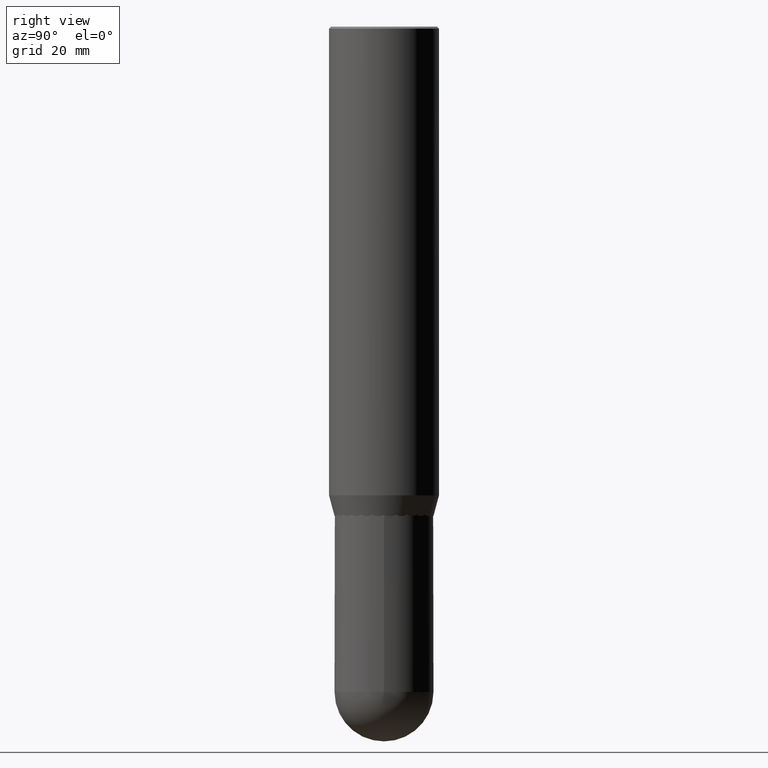
[diagram: clean part render]
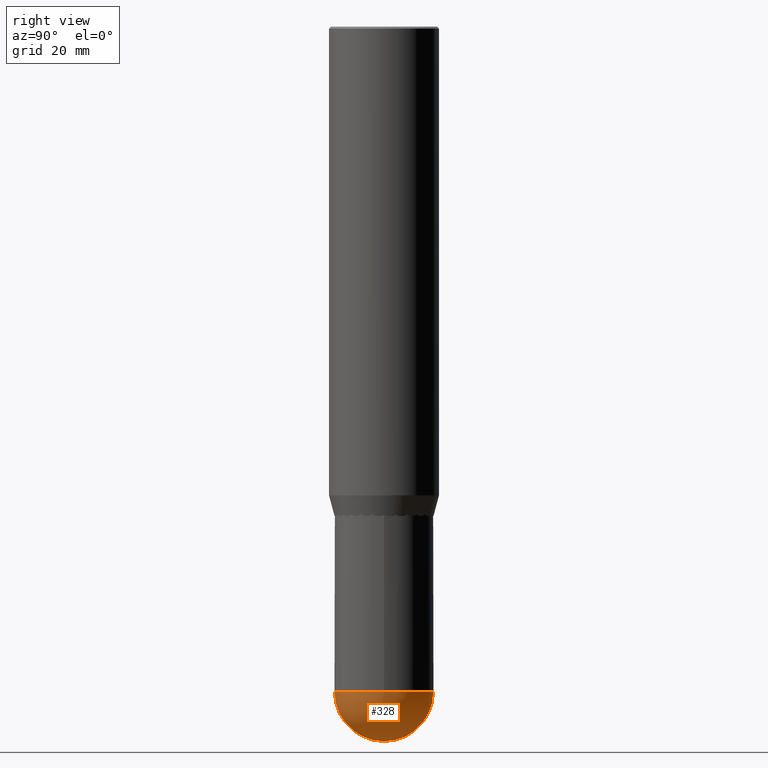
[diagram: same view with one face highlighted and labeled with its STEP entity id]
A machine part, right view. The second image highlights one B-rep face of the part: STEP entity #328.
In plain terms, the highlighted spherical surface has radius 9.0005 mm.
Its self-contained STEP definition (entity closure, byte-faithful):
#6 = CARTESIAN_POINT ( 'NONE',  ( 1.164960202546444527E-28, -1.663254422791403592E-14, -4.763749999999999929 ) ) ;
#20 = VERTEX_POINT ( 'NONE', #460 ) ;
#35 = CARTESIAN_POINT ( 'NONE',  ( 1.165296710481236520E-28, -1.662772524275939144E-14, -4.763749999999999929 ) ) ;
#37 = VERTEX_POINT ( 'NONE', #422 ) ;
#42 = EDGE_CURVE ( 'NONE', #20, #37, #311, .T. ) ;
#58 = CARTESIAN_POINT ( 'NONE',  ( -2.517808184165798640E-15, -0.3543500000000166517, -4.763749999999999041 ) ) ;
#60 = ORIENTED_EDGE ( 'NONE', *, *, #101, .F. ) ;
#62 = SPHERICAL_SURFACE ( 'NONE', #213, 0.3543499999999999983 ) ;
#87 = AXIS2_PLACEMENT_3D ( 'NONE', #371, #419, #139 ) ;
#89 = ORIENTED_EDGE ( 'NONE', *, *, #191, .F. ) ;
#101 = EDGE_CURVE ( 'NONE', #20, #358, #427, .T. ) ;
#118 = CARTESIAN_POINT ( 'NONE',  ( 0.3543500000000000538, -1.663263151494750088E-14, -4.763749999999999929 ) ) ;
#129 = VERTEX_POINT ( 'NONE', #118 ) ;
#134 = CARTESIAN_POINT ( 'NONE',  ( 1.165296710481236520E-28, -1.662772524275939144E-14, -4.763749999999999929 ) ) ;
#139 = DIRECTION ( 'NONE',  ( -7.105427357601001070E-15, -1.000000000000000000, 0.000000000000000000 ) ) ;
#174 = DIRECTION ( 'NONE',  ( -2.445468806185136597E-29, 3.491481338843145583E-15, 1.000000000000000000 ) ) ;
#175 = EDGE_CURVE ( 'NONE', #129, #37, #480, .T. ) ;
#176 = ORIENTED_EDGE ( 'NONE', *, *, #175, .F. ) ;
#187 = DIRECTION ( 'NONE',  ( -1.000000000000000000, 6.982962677686265133E-15, -4.883557194083112340E-29 ) ) ;
#191 = EDGE_CURVE ( 'NONE', #358, #129, #204, .T. ) ;
#204 = CIRCLE ( 'NONE', #325, 0.3543500000000000538 ) ;
#213 = AXIS2_PLACEMENT_3D ( 'NONE', #35, #187, #341 ) ;
#247 = DIRECTION ( 'NONE',  ( 1.000000000000000000, -6.982962677686265922E-15, 4.883557194083112340E-29 ) ) ;
#256 = EDGE_LOOP ( 'NONE', ( #60, #376, #176, #89 ) ) ;
#269 = AXIS2_PLACEMENT_3D ( 'NONE', #363, #174, #285 ) ;
#285 = DIRECTION ( 'NONE',  ( 1.000000000000000000, -6.982962677686270655E-15, 0.000000000000000000 ) ) ;
#311 = CIRCLE ( 'NONE', #408, 0.3543499999999999983 ) ;
#325 = AXIS2_PLACEMENT_3D ( 'NONE', #6, #370, #330 ) ;
#328 = ADVANCED_FACE ( 'NONE', ( #388 ), #62, .T. ) ;
#330 = DIRECTION ( 'NONE',  ( 1.000000000000000000, -6.982962677686270655E-15, 0.000000000000000000 ) ) ;
#341 = DIRECTION ( 'NONE',  ( 6.982962677686265133E-15, 1.000000000000000000, -3.083784951222534905E-15 ) ) ;
#358 = VERTEX_POINT ( 'NONE', #58 ) ;
#363 = CARTESIAN_POINT ( 'NONE',  ( 1.164960202546444527E-28, -1.663254422791403592E-14, -4.763749999999999929 ) ) ;
#370 = DIRECTION ( 'NONE',  ( -2.445468806185136597E-29, 3.491481338843145583E-15, 1.000000000000000000 ) ) ;
#371 = CARTESIAN_POINT ( 'NONE',  ( 1.165296710481236520E-28, -1.662772524275939144E-14, -4.763749999999999929 ) ) ;
#376 = ORIENTED_EDGE ( 'NONE', *, *, #42, .T. ) ;
#379 = DIRECTION ( 'NONE',  ( 6.982962677686265922E-15, 1.000000000000000000, 0.000000000000000000 ) ) ;
#388 = FACE_OUTER_BOUND ( 'NONE', #256, .T. ) ;
#408 = AXIS2_PLACEMENT_3D ( 'NONE', #134, #247, #379 ) ;
#419 = DIRECTION ( 'NONE',  ( -1.000000000000000000, 7.105427357601001070E-15, -4.926315508542082329E-29 ) ) ;
#422 = CARTESIAN_POINT ( 'NONE',  ( 2.474412824838244657E-15, 0.3543499999999834005, -4.763750000000001705 ) ) ;
#427 = CIRCLE ( 'NONE', #87, 0.3543499999999999983 ) ;
#460 = CARTESIAN_POINT ( 'NONE',  ( 1.253467038501260508E-28, -1.784323397551456639E-14, -5.118100000000000094 ) ) ;
#480 = CIRCLE ( 'NONE', #269, 0.3543500000000000538 ) ;